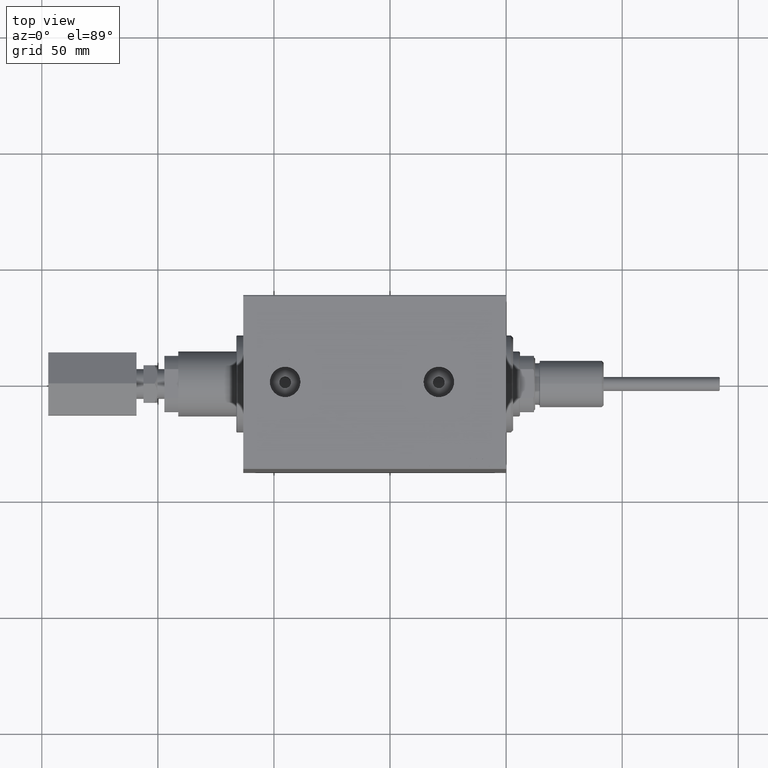
[diagram: clean part render]
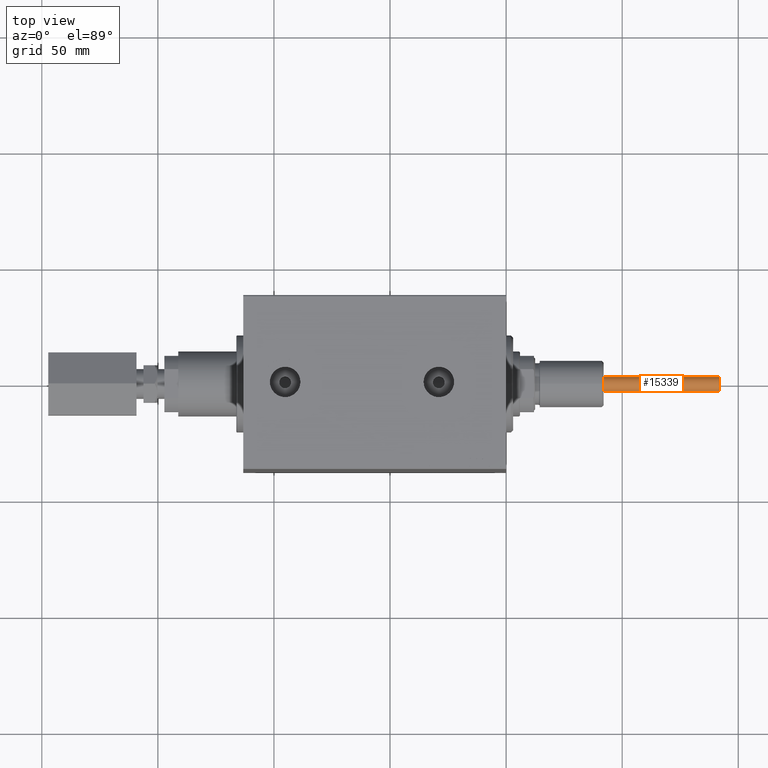
[diagram: same view with one face highlighted and labeled with its STEP entity id]
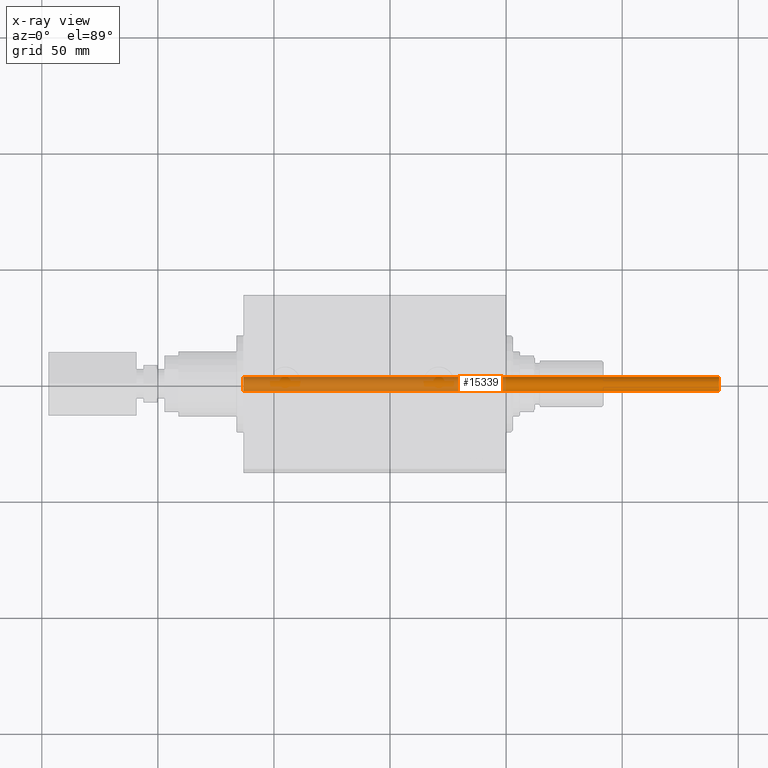
[diagram: x-ray of the same camera — body ghosted, the highlighted face saturated]
A machine part, top view. The second image highlights one B-rep face of the part: STEP entity #15339.
The next image is the same camera in x-ray: the body ghosted, the highlighted face saturated — about 49% of this face is hidden behind the body in this view.
In plain terms, the highlighted cylindrical surface (edge-blend (fillet) strip) has radius 3 mm, axis along (-1, 0, 0).
Its self-contained STEP definition (entity closure, byte-faithful):
#97 = CARTESIAN_POINT ( 'NONE',  ( 0.000000000000000000, 0.000000000000000000, -2.999999999999999556 ) ) ;
#541 = DIRECTION ( 'NONE',  ( 1.000000000000000000, -0.000000000000000000, -0.000000000000000000 ) ) ;
#1107 = LINE ( 'NONE', #33809, #3805 ) ;
#2578 = DIRECTION ( 'NONE',  ( 0.000000000000000000, 0.000000000000000000, -1.000000000000000000 ) ) ;
#2809 = DIRECTION ( 'NONE',  ( 1.000000000000000000, -0.000000000000000000, -0.000000000000000000 ) ) ;
#3805 = VECTOR ( 'NONE', #4961, 1000.000000000000000 ) ;
#4961 = DIRECTION ( 'NONE',  ( 1.000000000000000000, -0.000000000000000000, -0.000000000000000000 ) ) ;
#4994 = AXIS2_PLACEMENT_3D ( 'NONE', #47119, #6267, #13493 ) ;
#6267 = DIRECTION ( 'NONE',  ( 1.000000000000000000, 0.000000000000000000, 0.000000000000000000 ) ) ;
#6970 = CARTESIAN_POINT ( 'NONE',  ( -204.9000000000000341, 0.000000000000000000, -2.999999999999999556 ) ) ;
#7798 = VERTEX_POINT ( 'NONE', #6970 ) ;
#8085 = EDGE_CURVE ( 'NONE', #7798, #16380, #1107, .T. ) ;
#9179 = EDGE_LOOP ( 'NONE', ( #30859, #37470, #30743, #44738 ) ) ;
#9190 = DIRECTION ( 'NONE',  ( -1.000000000000000000, 0.000000000000000000, 0.000000000000000000 ) ) ;
#10255 = VERTEX_POINT ( 'NONE', #18776 ) ;
#10798 = VECTOR ( 'NONE', #541, 1000.000000000000000 ) ;
#11520 = EDGE_CURVE ( 'NONE', #16380, #38783, #29992, .T. ) ;
#12530 = CARTESIAN_POINT ( 'NONE',  ( 0.000000000000000000, 3.673940397442059375E-16, 2.999999999999999556 ) ) ;
#13493 = DIRECTION ( 'NONE',  ( 0.000000000000000000, 0.000000000000000000, 1.000000000000000000 ) ) ;
#15339 = ADVANCED_FACE ( 'NONE', ( #20858 ), #43202, .T. ) ;
#16380 = VERTEX_POINT ( 'NONE', #97 ) ;
#17293 = CIRCLE ( 'NONE', #4994, 2.999999999999999556 ) ;
#18776 = CARTESIAN_POINT ( 'NONE',  ( -204.9000000000000341, 3.673940397442059375E-16, 2.999999999999999556 ) ) ;
#20858 = FACE_OUTER_BOUND ( 'NONE', #9179, .T. ) ;
#22661 = CARTESIAN_POINT ( 'NONE',  ( -205.1999999999999886, 3.673940397442059375E-16, 2.999999999999999556 ) ) ;
#23129 = AXIS2_PLACEMENT_3D ( 'NONE', #38871, #2809, #2578 ) ;
#27086 = EDGE_CURVE ( 'NONE', #10255, #7798, #17293, .T. ) ;
#29992 = CIRCLE ( 'NONE', #33829, 2.999999999999999556 ) ;
#30743 = ORIENTED_EDGE ( 'NONE', *, *, #8085, .T. ) ;
#30859 = ORIENTED_EDGE ( 'NONE', *, *, #44125, .F. ) ;
#33809 = CARTESIAN_POINT ( 'NONE',  ( -205.1999999999999886, 0.000000000000000000, -2.999999999999999556 ) ) ;
#33829 = AXIS2_PLACEMENT_3D ( 'NONE', #40697, #9190, #35371 ) ;
#33949 = LINE ( 'NONE', #22661, #10798 ) ;
#35371 = DIRECTION ( 'NONE',  ( 0.000000000000000000, 0.000000000000000000, 1.000000000000000000 ) ) ;
#37470 = ORIENTED_EDGE ( 'NONE', *, *, #27086, .T. ) ;
#38783 = VERTEX_POINT ( 'NONE', #12530 ) ;
#38871 = CARTESIAN_POINT ( 'NONE',  ( -205.1999999999999886, 0.000000000000000000, 0.000000000000000000 ) ) ;
#40697 = CARTESIAN_POINT ( 'NONE',  ( 0.000000000000000000, 0.000000000000000000, 0.000000000000000000 ) ) ;
#43202 = CYLINDRICAL_SURFACE ( 'NONE', #23129, 2.999999999999999556 ) ;
#44125 = EDGE_CURVE ( 'NONE', #10255, #38783, #33949, .T. ) ;
#44738 = ORIENTED_EDGE ( 'NONE', *, *, #11520, .T. ) ;
#47119 = CARTESIAN_POINT ( 'NONE',  ( -204.9000000000000341, 0.000000000000000000, 0.000000000000000000 ) ) ;